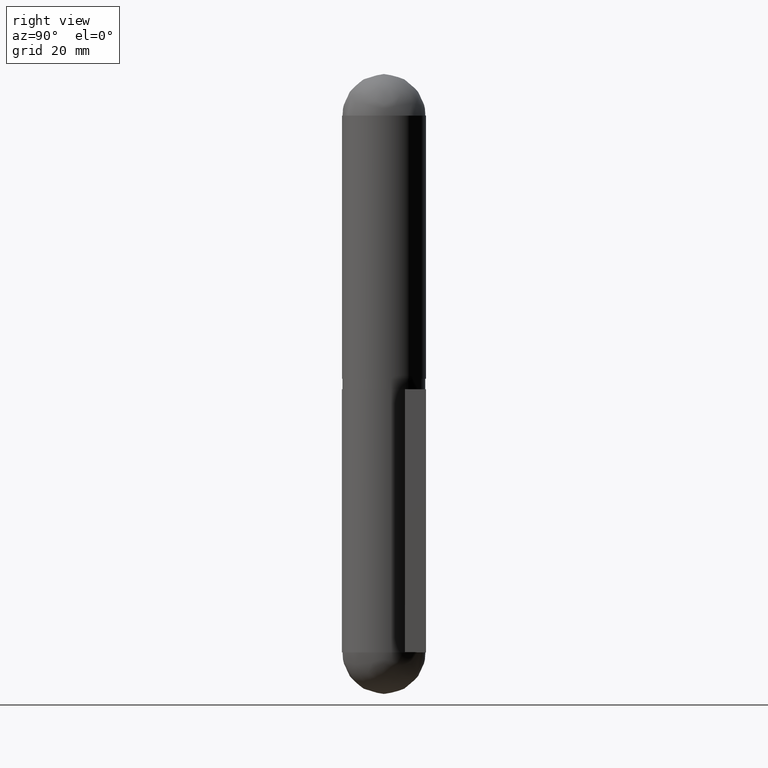
[diagram: clean part render]
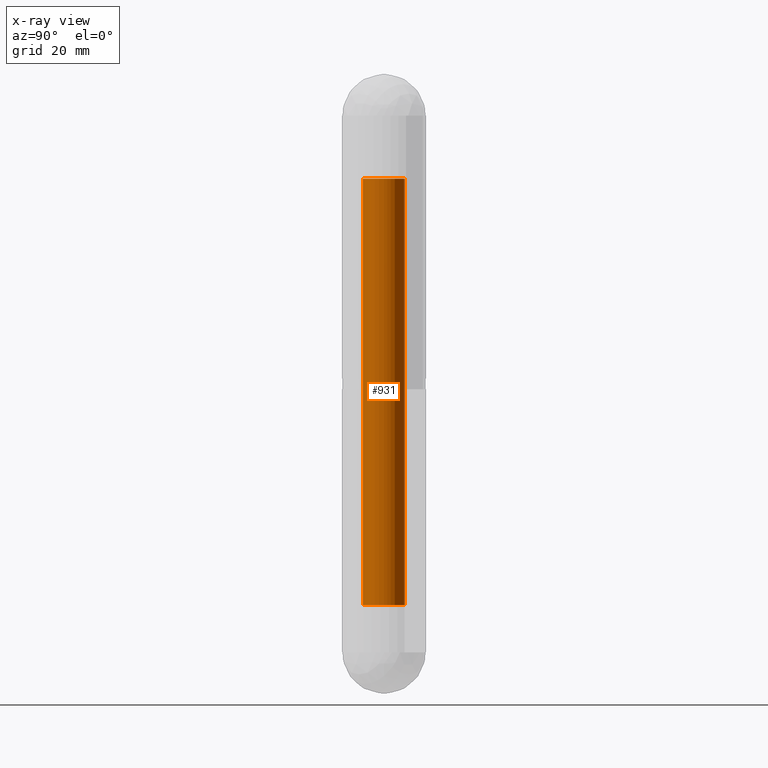
[diagram: x-ray — body ghosted, one internal face saturated and labeled with its STEP entity id]
A machine part, right view, then the same camera in x-ray: the body is ghosted and one INTERNAL B-rep face — a face not visible from any outside direction — is saturated and labeled: STEP entity #931.
In plain terms, the highlighted face is a freeform B-spline surface patch.
Its self-contained STEP definition (entity closure, byte-faithful):
#829=CARTESIAN_POINT('',(-0.472136938627034,3.972038105454666,92.025000000000034));
#830=CARTESIAN_POINT('',(-0.358458914551911,3.985550461794422,92.025000000000034));
#831=CARTESIAN_POINT('',(-0.244194158139428,3.992539193687467,92.025000000000020));
#832=CARTESIAN_POINT('',(3.748345035548039,4.236733351826894,92.025000000000034));
#833=CARTESIAN_POINT('',(3.992539193687467,0.244194158139428,92.025000000000020));
#834=CARTESIAN_POINT('',(4.236733351826894,-3.748345035548039,92.025000000000034));
#835=CARTESIAN_POINT('',(0.244194158139428,-3.992539193687467,92.025000000000020));
#836=CARTESIAN_POINT('',(-0.472136938627034,3.972038105454666,6.924374999999998));
#837=CARTESIAN_POINT('',(-0.358458914551911,3.985550461794422,6.924374999999998));
#838=CARTESIAN_POINT('',(-0.244194158139428,3.992539193687467,6.924374999999998));
#839=CARTESIAN_POINT('',(3.748345035548039,4.236733351826894,6.924374999999997));
#840=CARTESIAN_POINT('',(3.992539193687467,0.244194158139428,6.924374999999998));
#841=CARTESIAN_POINT('',(4.236733351826894,-3.748345035548039,6.924374999999997));
#842=CARTESIAN_POINT('',(0.244194158139428,-3.992539193687467,6.924374999999998));
#850=(BOUNDED_SURFACE()B_SPLINE_SURFACE(2,1,((#829,#836),(#830,#837),(#831,#838),(#832,#839),(#833,#840),(#834,#841),(#835,#842)),.UNSPECIFIED.,.F.,.F.,.U.)B_SPLINE_SURFACE_WITH_KNOTS((3,2,2,3),(2,2),(0.0,0.265096679918781,6.892513677888299,13.519930675857820),(0.0,85.100625000000036),.UNSPECIFIED.)GEOMETRIC_REPRESENTATION_ITEM()RATIONAL_B_SPLINE_SURFACE(((0.977505800795127,0.977505800795127),(0.988284271247462,0.988284271247462),(1.0,1.0),(0.707106781186548,0.707106781186548),(1.0,1.0),(0.707106781186548,0.707106781186548),(1.0,1.0)))REPRESENTATION_ITEM('')SURFACE());
#851=CARTESIAN_POINT('',(-0.472136938807705,3.972038105433190,90.0));
#852=VERTEX_POINT('',#851);
#853=CARTESIAN_POINT('',(4.0,0.0,90.0));
#854=VERTEX_POINT('',#853);
#855=CARTESIAN_POINT('',(-0.472136938807705,3.972038105433190,90.0));
#856=CARTESIAN_POINT('',(-0.236896478790222,4.0,90.000000000000014));
#857=CARTESIAN_POINT('',(0.0,4.0,90.0));
#858=CARTESIAN_POINT('',(4.000000000000000,4.000000000000000,89.999999999999986));
#859=CARTESIAN_POINT('',(4.0,0.0,90.0));
#867=(BOUNDED_CURVE()B_SPLINE_CURVE(2,(#855,#856,#857,#858,#859),.UNSPECIFIED.,.F.,.U.)B_SPLINE_CURVE_WITH_KNOTS((3,2,3),(0.229562473500270,0.250000000000000,0.500000000000000),.UNSPECIFIED.)CURVE()GEOMETRIC_REPRESENTATION_ITEM()RATIONAL_B_SPLINE_CURVE((0.956026754157751,0.976055948315635,1.0,0.707106781186548,1.0))REPRESENTATION_ITEM(''));
#868=EDGE_CURVE('',#852,#854,#867,.T.);
#869=ORIENTED_EDGE('',*,*,#868,.T.);
#870=CARTESIAN_POINT('',(0.244194158350835,-3.992539193674537,90.0));
#871=VERTEX_POINT('',#870);
#872=CARTESIAN_POINT('',(4.0,0.0,90.0));
#873=CARTESIAN_POINT('',(4.000000000000001,-3.762824267223540,89.999999999999986));
#874=CARTESIAN_POINT('',(0.244194158350835,-3.992539193674537,90.0));
#882=(BOUNDED_CURVE()B_SPLINE_CURVE(2,(#872,#873,#874),.UNSPECIFIED.,.F.,.U.)B_SPLINE_CURVE_WITH_KNOTS((3,3),(0.500000000000000,0.739332962223695),.UNSPECIFIED.)CURVE()GEOMETRIC_REPRESENTATION_ITEM()RATIONAL_B_SPLINE_CURVE((1.0,0.719603993304574,0.976072041634039))REPRESENTATION_ITEM(''));
#883=EDGE_CURVE('',#854,#871,#882,.T.);
#884=ORIENTED_EDGE('',*,*,#883,.T.);
#885=CARTESIAN_POINT('',(0.244194158350835,-3.992539193674537,9.0));
#886=VERTEX_POINT('',#885);
#887=CARTESIAN_POINT('',(0.244194158350835,-3.992539193674537,90.0));
#888=CARTESIAN_POINT('',(0.244194158350835,-3.992539193674537,9.0));
#889=QUASI_UNIFORM_CURVE('',1,(#887,#888),.UNSPECIFIED.,.F.,.U.);
#890=EDGE_CURVE('',#871,#886,#889,.T.);
#891=ORIENTED_EDGE('',*,*,#890,.T.);
#892=CARTESIAN_POINT('',(4.0,0.0,9.0));
#893=VERTEX_POINT('',#892);
#894=CARTESIAN_POINT('',(4.0,0.0,9.0));
#895=CARTESIAN_POINT('',(4.000000000000001,-3.762824267223540,9.000000000000002));
#896=CARTESIAN_POINT('',(0.244194158350835,-3.992539193674537,9.0));
#904=(BOUNDED_CURVE()B_SPLINE_CURVE(2,(#894,#895,#896),.UNSPECIFIED.,.F.,.U.)B_SPLINE_CURVE_WITH_KNOTS((3,3),(0.500000000000000,0.739332962223695),.UNSPECIFIED.)CURVE()GEOMETRIC_REPRESENTATION_ITEM()RATIONAL_B_SPLINE_CURVE((1.0,0.719603993304574,0.976072041634039))REPRESENTATION_ITEM(''));
#905=EDGE_CURVE('',#893,#886,#904,.T.);
#906=ORIENTED_EDGE('',*,*,#905,.F.);
#907=CARTESIAN_POINT('',(-0.472136938807705,3.972038105433190,9.0));
#908=VERTEX_POINT('',#907);
#909=CARTESIAN_POINT('',(-0.472136938807705,3.972038105433190,9.0));
#910=CARTESIAN_POINT('',(-0.236896478790222,4.0,9.0));
#911=CARTESIAN_POINT('',(0.0,4.0,9.0));
#912=CARTESIAN_POINT('',(4.000000000000000,4.000000000000000,9.000000000000002));
#913=CARTESIAN_POINT('',(4.0,0.0,9.0));
#921=(BOUNDED_CURVE()B_SPLINE_CURVE(2,(#909,#910,#911,#912,#913),.UNSPECIFIED.,.F.,.U.)B_SPLINE_CURVE_WITH_KNOTS((3,2,3),(0.229562473500270,0.250000000000000,0.500000000000000),.UNSPECIFIED.)CURVE()GEOMETRIC_REPRESENTATION_ITEM()RATIONAL_B_SPLINE_CURVE((0.956026754157751,0.976055948315635,1.0,0.707106781186548,1.0))REPRESENTATION_ITEM(''));
#922=EDGE_CURVE('',#908,#893,#921,.T.);
#923=ORIENTED_EDGE('',*,*,#922,.F.);
#924=CARTESIAN_POINT('',(-0.472136938807705,3.972038105433190,90.0));
#925=CARTESIAN_POINT('',(-0.472136938807705,3.972038105433190,9.0));
#926=QUASI_UNIFORM_CURVE('',1,(#924,#925),.UNSPECIFIED.,.F.,.U.);
#927=EDGE_CURVE('',#852,#908,#926,.T.);
#928=ORIENTED_EDGE('',*,*,#927,.F.);
#929=EDGE_LOOP('',(#869,#884,#891,#906,#923,#928));
#930=FACE_OUTER_BOUND('',#929,.T.);
#931=ADVANCED_FACE('',(#930),#850,.T.);